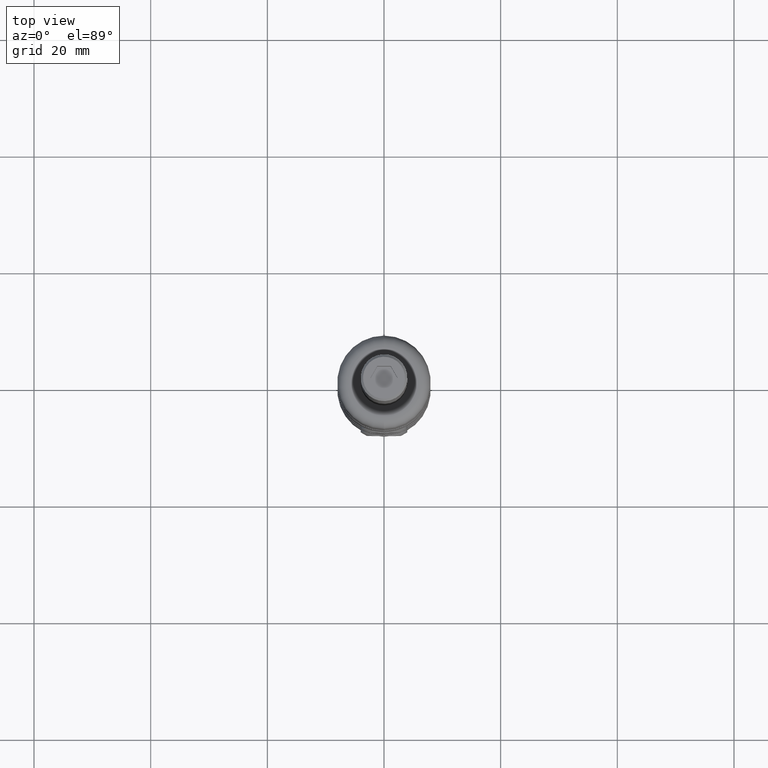
[diagram: clean part render]
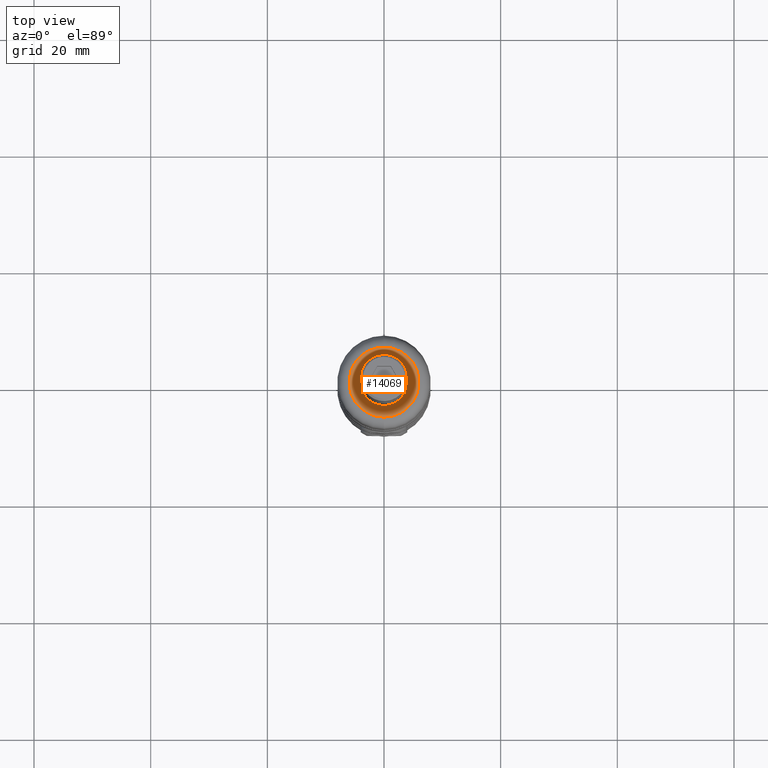
[diagram: same view with one face highlighted and labeled with its STEP entity id]
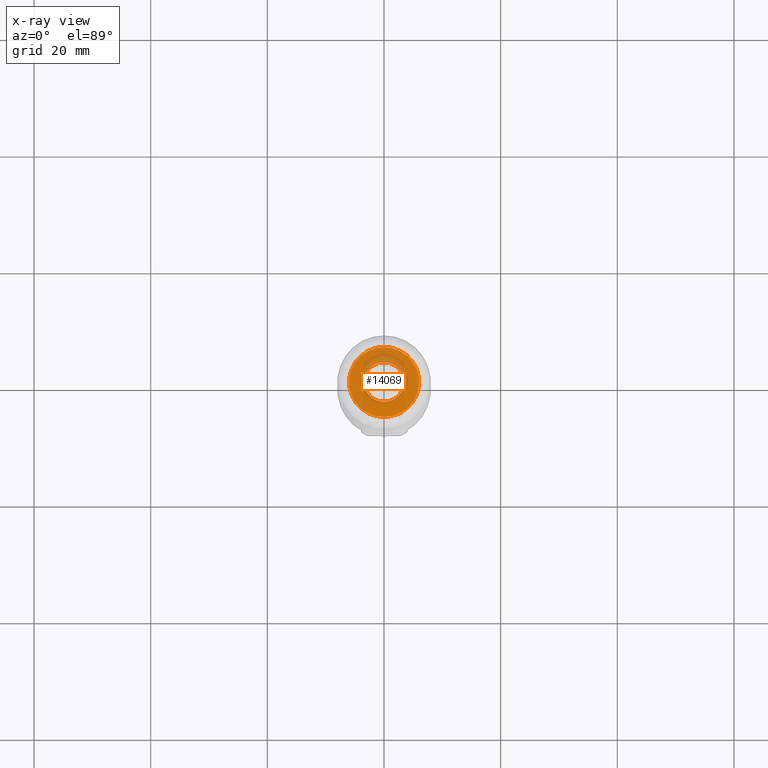
[diagram: x-ray of the same camera — body ghosted, the highlighted face saturated]
A machine part, top view. The second image highlights one B-rep face of the part: STEP entity #14069.
The next image is the same camera in x-ray: the body ghosted, the highlighted face saturated — about 23% of this face is hidden behind the body in this view.
In plain terms, the highlighted planar face has unit normal (0, -0, -1).
Its self-contained STEP definition (entity closure, byte-faithful):
#400 = AXIS2_PLACEMENT_3D ( 'NONE', #14799, #6534, #17354 ) ;
#415 = CARTESIAN_POINT ( 'NONE',  ( 0.0000000000000000000, 4.814824860968089600E-032, 40.00000000000000000 ) ) ;
#681 = CIRCLE ( 'NONE', #3214, 3.399999999999997700 ) ;
#1230 = FACE_OUTER_BOUND ( 'NONE', #5200, .T. ) ;
#1334 = CARTESIAN_POINT ( 'NONE',  ( 0.0000000000000000000, 4.206008368459476300E-015, 40.00000000000000000 ) ) ;
#2358 = CARTESIAN_POINT ( 'NONE',  ( 3.399999999999997700, 4.206008368459476300E-015, 40.00000000000000000 ) ) ;
#2359 = AXIS2_PLACEMENT_3D ( 'NONE', #1334, #5234, #6574 ) ;
#2431 = DIRECTION ( 'NONE',  ( 1.000000000000000000, 0.0000000000000000000, 0.0000000000000000000 ) ) ;
#2782 = VERTEX_POINT ( 'NONE', #5178 ) ;
#3214 = AXIS2_PLACEMENT_3D ( 'NONE', #16081, #15829, #2431 ) ;
#3818 = EDGE_CURVE ( 'NONE', #8040, #10417, #6503, .T. ) ;
#4524 = DIRECTION ( 'NONE',  ( -0.0000000000000000000, 5.922595424346115800E-017, 1.000000000000000000 ) ) ;
#4758 = VERTEX_POINT ( 'NONE', #9021 ) ;
#5178 = CARTESIAN_POINT ( 'NONE',  ( 0.0000000000000000000, 5.999999999999989300, 40.00000000000000000 ) ) ;
#5200 = EDGE_LOOP ( 'NONE', ( #7425, #8837 ) ) ;
#5234 = DIRECTION ( 'NONE',  ( -0.0000000000000000000, -0.0000000000000000000, 1.000000000000000000 ) ) ;
#5393 = AXIS2_PLACEMENT_3D ( 'NONE', #13344, #13111, #14607 ) ;
#5795 = DIRECTION ( 'NONE',  ( 0.0000000000000000000, 1.000000000000000000, 0.0000000000000000000 ) ) ;
#6426 = CIRCLE ( 'NONE', #5393, 5.999999999999989300 ) ;
#6503 = CIRCLE ( 'NONE', #2359, 3.399999999999997700 ) ;
#6534 = DIRECTION ( 'NONE',  ( 0.0000000000000000000, -5.922595424346115800E-017, -1.000000000000000000 ) ) ;
#6574 = DIRECTION ( 'NONE',  ( 1.000000000000000000, 0.0000000000000000000, 0.0000000000000000000 ) ) ;
#7425 = ORIENTED_EDGE ( 'NONE', *, *, #7600, .T. ) ;
#7479 = CIRCLE ( 'NONE', #13354, 5.999999999999989300 ) ;
#7512 = ORIENTED_EDGE ( 'NONE', *, *, #3818, .F. ) ;
#7600 = EDGE_CURVE ( 'NONE', #2782, #4758, #7479, .T. ) ;
#7827 = EDGE_LOOP ( 'NONE', ( #15217, #7512 ) ) ;
#8040 = VERTEX_POINT ( 'NONE', #13181 ) ;
#8837 = ORIENTED_EDGE ( 'NONE', *, *, #10741, .T. ) ;
#9021 = CARTESIAN_POINT ( 'NONE',  ( 8.572527594031460400E-016, -5.999999999999989300, 40.00000000000000000 ) ) ;
#9178 = PLANE ( 'NONE',  #400 ) ;
#10417 = VERTEX_POINT ( 'NONE', #2358 ) ;
#10741 = EDGE_CURVE ( 'NONE', #4758, #2782, #6426, .T. ) ;
#11522 = FACE_BOUND ( 'NONE', #7827, .T. ) ;
#12626 = EDGE_CURVE ( 'NONE', #10417, #8040, #681, .T. ) ;
#13111 = DIRECTION ( 'NONE',  ( -0.0000000000000000000, 5.922595424346115800E-017, 1.000000000000000000 ) ) ;
#13181 = CARTESIAN_POINT ( 'NONE',  ( -3.399999999999997700, 4.622388280169576000E-015, 40.00000000000000000 ) ) ;
#13344 = CARTESIAN_POINT ( 'NONE',  ( 0.0000000000000000000, 4.814824860968089600E-032, 40.00000000000000000 ) ) ;
#13354 = AXIS2_PLACEMENT_3D ( 'NONE', #415, #4524, #5795 ) ;
#14069 = ADVANCED_FACE ( 'NONE', ( #11522, #1230 ), #9178, .F. ) ;
#14607 = DIRECTION ( 'NONE',  ( 0.0000000000000000000, 1.000000000000000000, 0.0000000000000000000 ) ) ;
#14799 = CARTESIAN_POINT ( 'NONE',  ( 0.0000000000000000000, 8.000000000000000000, 40.00000000000000000 ) ) ;
#15217 = ORIENTED_EDGE ( 'NONE', *, *, #12626, .F. ) ;
#15829 = DIRECTION ( 'NONE',  ( -0.0000000000000000000, -0.0000000000000000000, 1.000000000000000000 ) ) ;
#16081 = CARTESIAN_POINT ( 'NONE',  ( 0.0000000000000000000, 4.206008368459476300E-015, 40.00000000000000000 ) ) ;
#17354 = DIRECTION ( 'NONE',  ( 0.0000000000000000000, 1.000000000000000000, -5.922595424346115800E-017 ) ) ;